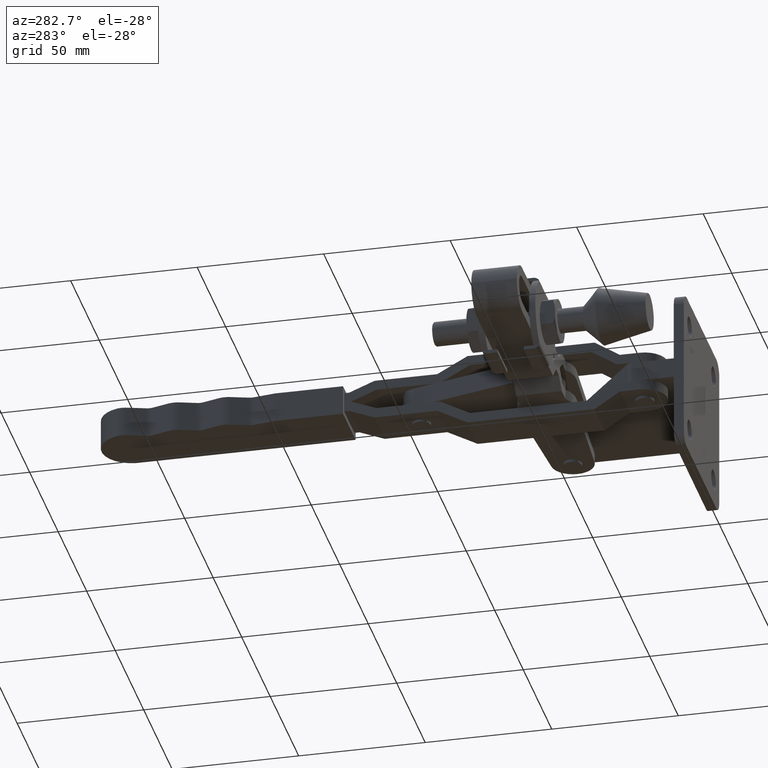
[diagram: clean part render]
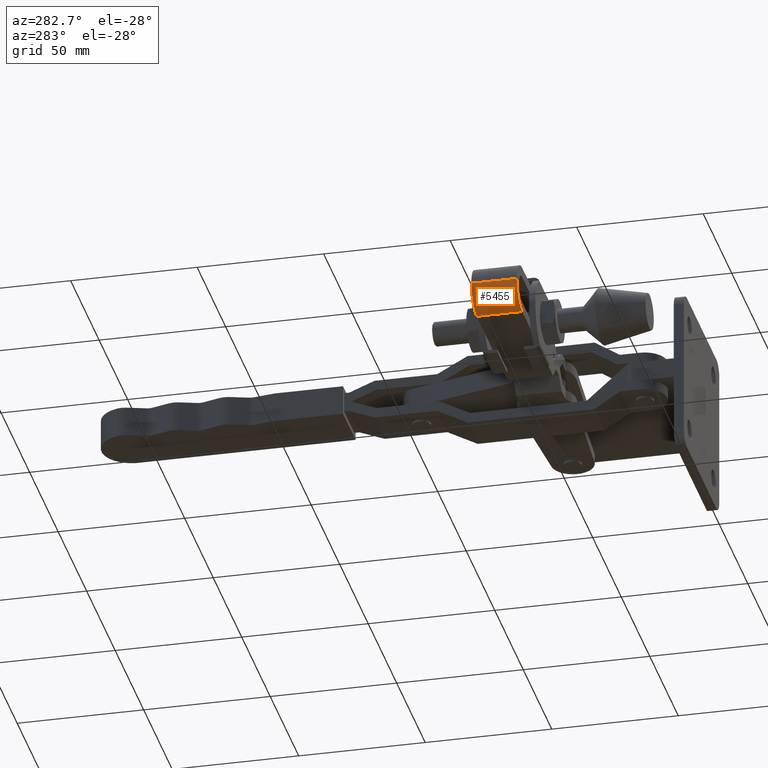
[diagram: same view with one face highlighted and labeled with its STEP entity id]
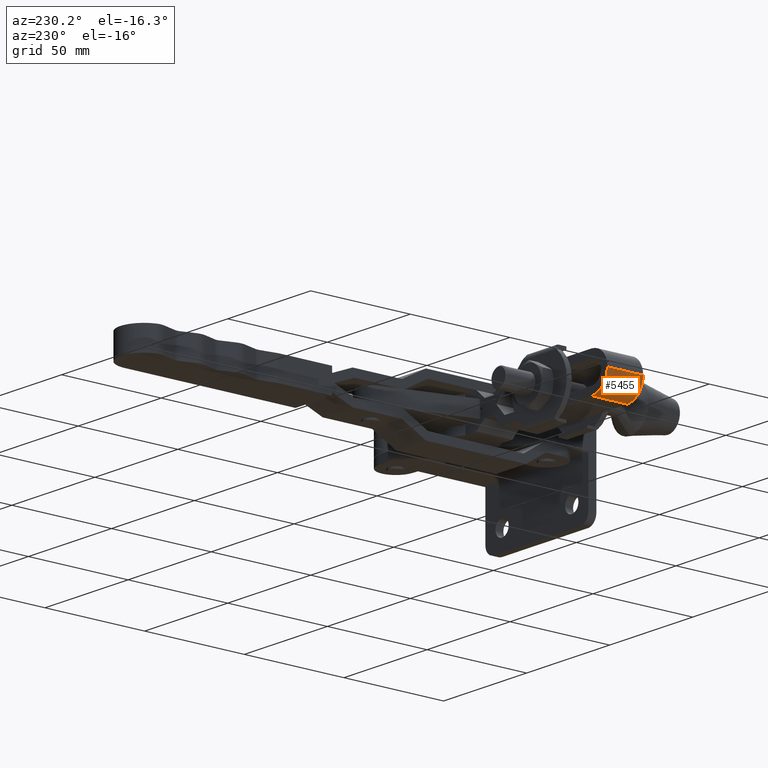
[diagram: same view with one face highlighted and labeled with its STEP entity id]
A machine part, auxiliary view. The second image highlights one B-rep face of the part: STEP entity #5455.
A second angle (auxiliary view) of the same face is appended — the face is thin or edge-on in the first view.
In plain terms, the highlighted cylindrical surface (edge-blend (fillet) strip) has radius 9.5 mm, axis along (0.0003, -1, -0).
Its self-contained STEP definition (entity closure, byte-faithful):
#209 = CARTESIAN_POINT ( 'NONE',  ( -137.1053684828487200, 64.96165910570017800, 1.581873639303582200E-016 ) ) ;
#455 = AXIS2_PLACEMENT_3D ( 'NONE', #209, #5704, #1018 ) ;
#678 = ORIENTED_EDGE ( 'NONE', *, *, #5769, .F. ) ;
#1001 = CIRCLE ( 'NONE', #9208, 9.499999999995903700 ) ;
#1018 = DIRECTION ( 'NONE',  ( 0.9999999555588471300, 0.0002981313534467073200, -1.154441959682111200E-018 ) ) ;
#1159 = CARTESIAN_POINT ( 'NONE',  ( -137.1611590268700200, 252.0957558616435100, 2.852187121078718800E-015 ) ) ;
#1454 = EDGE_CURVE ( 'NONE', #1845, #10032, #1001, .T. ) ;
#1500 = DIRECTION ( 'NONE',  ( 0.0002981313534467922200, -0.9999999555588470200, -1.439609180863158000E-017 ) ) ;
#1629 = EDGE_LOOP ( 'NONE', ( #678, #9581, #5210, #7983 ) ) ;
#1778 = CYLINDRICAL_SURFACE ( 'NONE', #6398, 9.499999999995903700 ) ;
#1845 = VERTEX_POINT ( 'NONE', #3094 ) ;
#2032 = EDGE_CURVE ( 'NONE', #6755, #1845, #4653, .T. ) ;
#2403 = CARTESIAN_POINT ( 'NONE',  ( -137.1000021184866600, 46.96165990564090700, -1.009422886250104600E-016 ) ) ;
#2739 = DIRECTION ( 'NONE',  ( 0.0002981313534467922700, -0.9999999555588471300, -1.439609180863158000E-017 ) ) ;
#3071 = CARTESIAN_POINT ( 'NONE',  ( -146.6000016962916600, 46.95882765778318900, -8.997509000803445600E-017 ) ) ;
#3094 = CARTESIAN_POINT ( 'NONE',  ( -137.1000021184866600, 46.96165990564092100, -9.499999999995917900 ) ) ;
#4196 = EDGE_CURVE ( 'NONE', #5071, #6755, #4982, .T. ) ;
#4232 = DIRECTION ( 'NONE',  ( -0.9999999555588471300, -0.0002981313534467073200, 1.154441959682101200E-018 ) ) ;
#4319 = DIRECTION ( 'NONE',  ( -0.9999999555588471300, -0.0002981313534467073200, 1.154441959682110000E-018 ) ) ;
#4653 = LINE ( 'NONE', #7273, #6766 ) ;
#4982 = CIRCLE ( 'NONE', #455, 9.499999999995903700 ) ;
#5071 = VERTEX_POINT ( 'NONE', #10014 ) ;
#5210 = ORIENTED_EDGE ( 'NONE', *, *, #2032, .T. ) ;
#5455 = ADVANCED_FACE ( 'NONE', ( #8034 ), #1778, .T. ) ;
#5704 = DIRECTION ( 'NONE',  ( 0.0002981313534467922700, -0.9999999555588471300, -1.439609180863158000E-017 ) ) ;
#5707 = VECTOR ( 'NONE', #1500, 1000.000000000000100 ) ;
#5769 = EDGE_CURVE ( 'NONE', #5071, #10032, #5952, .T. ) ;
#5952 = LINE ( 'NONE', #7786, #5707 ) ;
#6274 = DIRECTION ( 'NONE',  ( 0.0002981313534467922200, -0.9999999555588470200, -1.439609180863158000E-017 ) ) ;
#6398 = AXIS2_PLACEMENT_3D ( 'NONE', #1159, #2739, #4232 ) ;
#6755 = VERTEX_POINT ( 'NONE', #7099 ) ;
#6766 = VECTOR ( 'NONE', #6274, 1000.000000000000100 ) ;
#7099 = CARTESIAN_POINT ( 'NONE',  ( -137.1053684828487200, 64.96165910570016400, -9.499999999995917900 ) ) ;
#7273 = CARTESIAN_POINT ( 'NONE',  ( -137.1611590268700200, 252.0957558616435100, -9.499999999995896600 ) ) ;
#7674 = DIRECTION ( 'NONE',  ( -0.0002981313534467922700, 0.9999999555588471300, 1.439609180863158000E-017 ) ) ;
#7786 = CARTESIAN_POINT ( 'NONE',  ( -146.6611586046749700, 252.0929236137857600, 2.863154319695694100E-015 ) ) ;
#7983 = ORIENTED_EDGE ( 'NONE', *, *, #1454, .T. ) ;
#8034 = FACE_OUTER_BOUND ( 'NONE', #1629, .T. ) ;
#9208 = AXIS2_PLACEMENT_3D ( 'NONE', #2403, #7674, #4319 ) ;
#9581 = ORIENTED_EDGE ( 'NONE', *, *, #4196, .T. ) ;
#10014 = CARTESIAN_POINT ( 'NONE',  ( -146.6053680606536600, 64.95882685784241100, 1.691545625473334400E-016 ) ) ;
#10032 = VERTEX_POINT ( 'NONE', #3071 ) ;